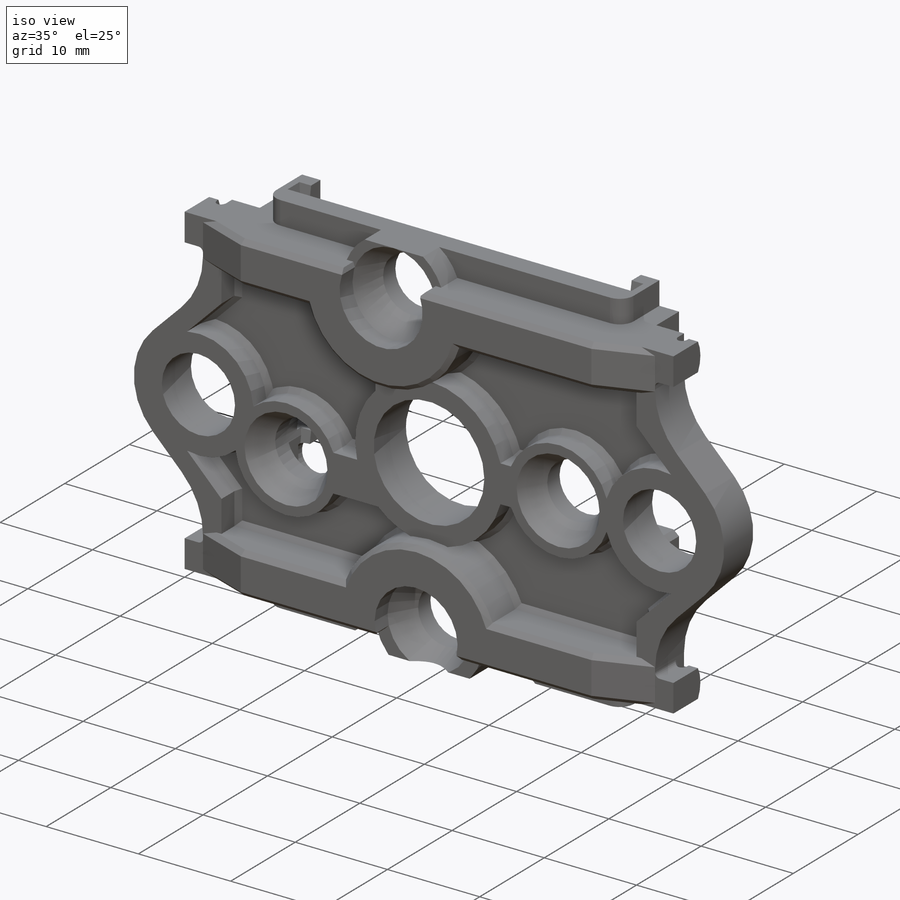
[diagram: iso view]
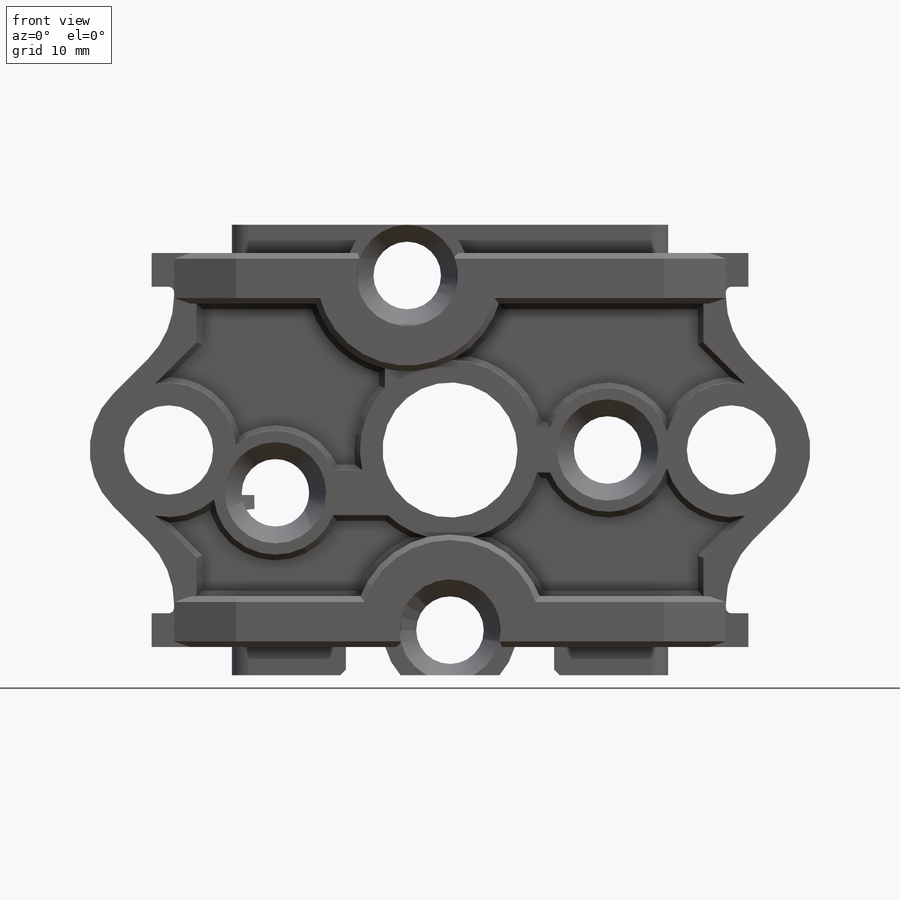
[diagram: front view]
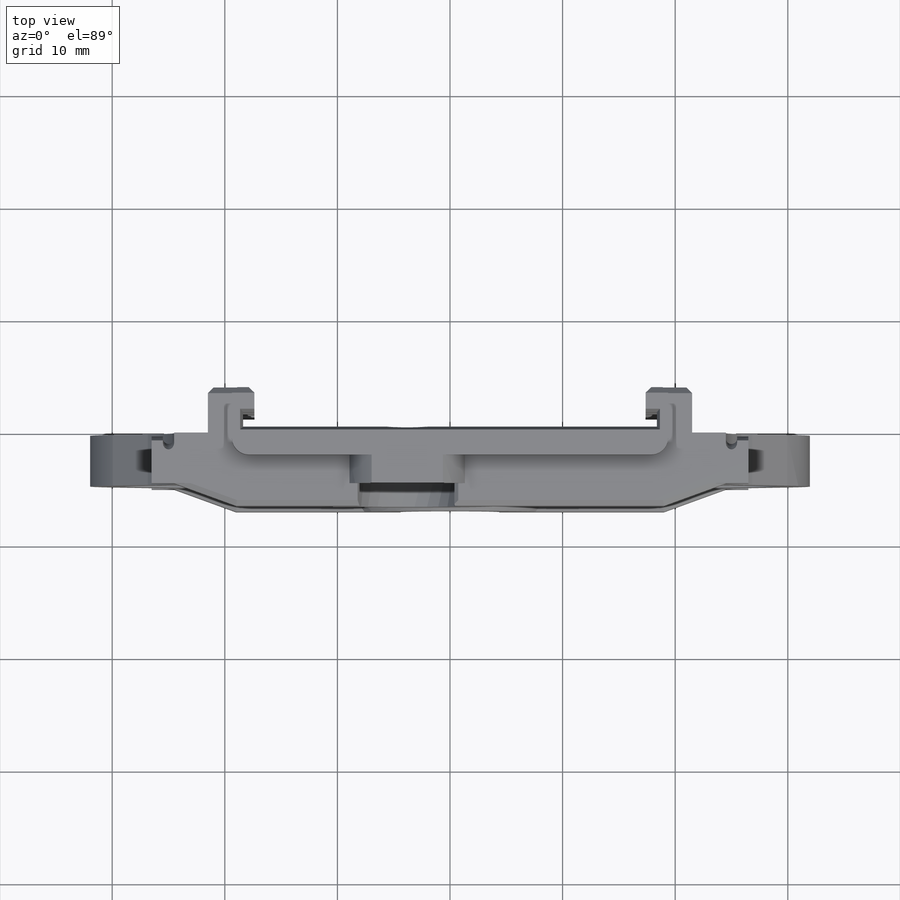
[diagram: top view]
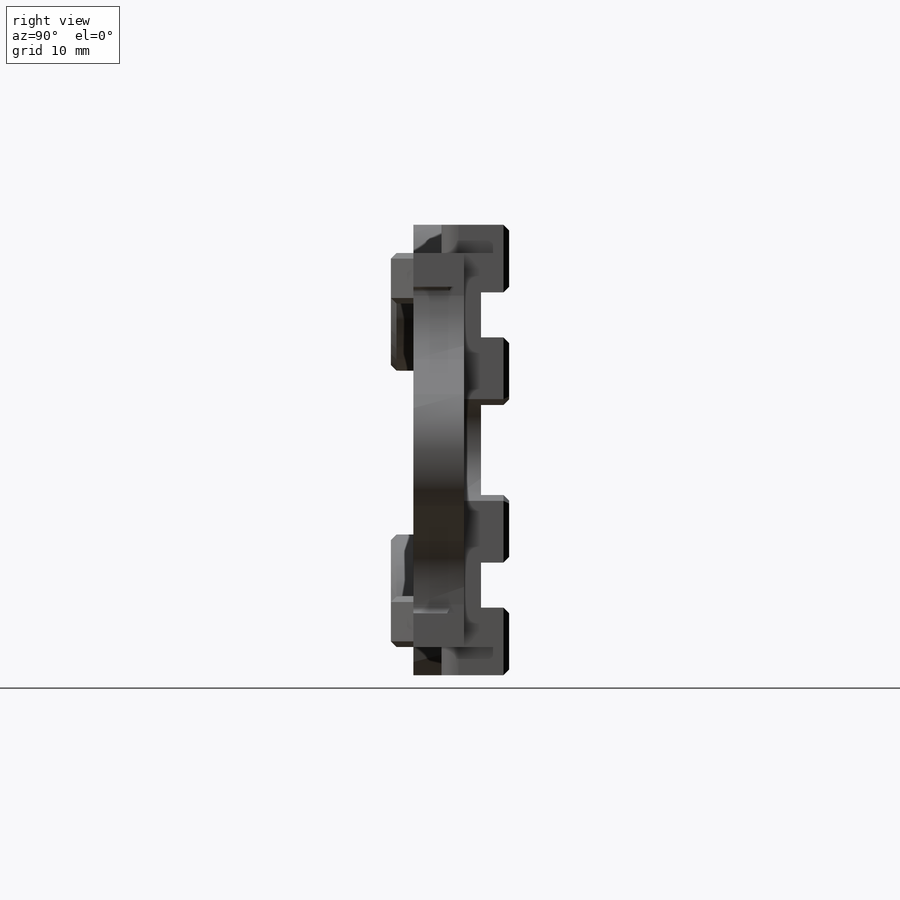
[diagram: right view]
SOLIDWORKS PART (.sldprt)
format: sldprt  version: not decoded by parser v0  size: 1,057,280 bytes
history: native  units: mm
features: sketch x15, cut_extrude x10, extrude x4, chamfer x4, mirror x3, fillet x3, material x1, shell x1 (+16 scaffold rows collapsed)
feature tree (57):
  scaffold x16  (default folders/planes/origin — collapsed)
  material  "Material <not specified>"
  sketch  "Sketch1"  dims[D1=1.3mm D2=36.75mm D3=1.0mm D4=3.5mm D5=43.0mm D6=5.0mm]
  extrude  "Boss-Extrude1"  Depth=20mm
  sketch  "Sketch2"  dims[D2=6.0mm D8=12.0mm D1=16.0mm D3=3.8mm D4=15.5mm D5=3.8mm D6=15.5mm D7=14.0mm]
  cut_extrude  "Cut-Extrude1"  [1 undecoded]
  sketch  "Sketch3"  dims[D1=18.5mm D2=3.5mm D3=17.5mm D4=5.0mm]
  cut_extrude  "Cut-Extrude2"  [1 undecoded]
  sketch  "Sketch4"  dims[c1.D2=7.0mm c1.D1=25.0mm c1.D3=~6.652563mm c2.D3=90.0deg c2.D4=0.5mm c2.D5=3.0mm c2.D6=16.0mm c2.D7=1.5mm]
  extrude  "Boss-Extrude2"  Depth=0.5mm
  sketch  "Sketch5"  dims[D1=7.9375mm]
  cut_extrude  "Cut-Extrude3"  [1 undecoded]
  sketch  "Sketch10"  dims[D3=5.0mm D1=3.0mm D2=1.0mm]
  cut_extrude  "Cut-Extrude7"  Depth=1mm
  sketch  "Sketch11"  dims[D1=6.35mm D2=9.0mm]
  cut_extrude  "Cut-Extrude9"  Depth=1mm
  sketch  "Sketch14"  dims[D1=1.0mm]
  cut_extrude  "Cut-Extrude11"  Depth=2.5mm
  mirror  "Mirror4"
  mirror  "Mirror1"
  shell  "Shell1"  Thickness=2mm
  fillet  "Fillet2"  Radius=0.5mm
  sketch  "Sketch8"  dims[c1.D1=1.0mm c2.D1=4.0mm]
  sketch  "Sketch12"  dims[D1=4.5mm D2=4.5mm]
  extrude  "Boss-Extrude3"  [1 undecoded]
  sketch  "Sketch13"
  cut_extrude  "Cut-Extrude10"  Depth=2.5mm
  sketch  "Sketch6"  dims[D1=11.43mm]
  cut_extrude  "Cut-Extrude5"  [1 undecoded]
  sketch  "Sketch7"  dims[D1=8.0mm D2=4.0mm D3=6.0mm]
  cut_extrude  "Cut-Extrude6"  Depth=1mm
  mirror  "Mirror2"
  sketch  "Sketch17"  dims[D1=3.5mm D2=~3.923788mm D3=0.25mm]
  cut_extrude  "Cut-Extrude12"  [1 undecoded]
  chamfer  "Chamfer1"  Distance=1.5mm Angle=10deg
  fillet  "Fillet1"  Radius=8mm
  fillet  "Fillet3"  Radius=1.5mm
  chamfer  "Chamfer3"  Distance=1.5mm Angle=60deg
  sketch  "Sketch16"  dims[D1=8.5mm]
  extrude  "Boss-Extrude4"  Depth=2mm
  chamfer  "Chamfer4"  Distance=2mm Angle=70deg
  chamfer  "Chamfer2"  Distance=0.5mm Angle=45deg
decode coverage: 30 of 40 modeling features carry decoded parameters
note: ~ marks probable driven/reference dimensions
note: 6 parameter values undecoded
summary: no parameter record found for 6 features
note: suppression state not decoded; provenance and decode notes live in map.json
